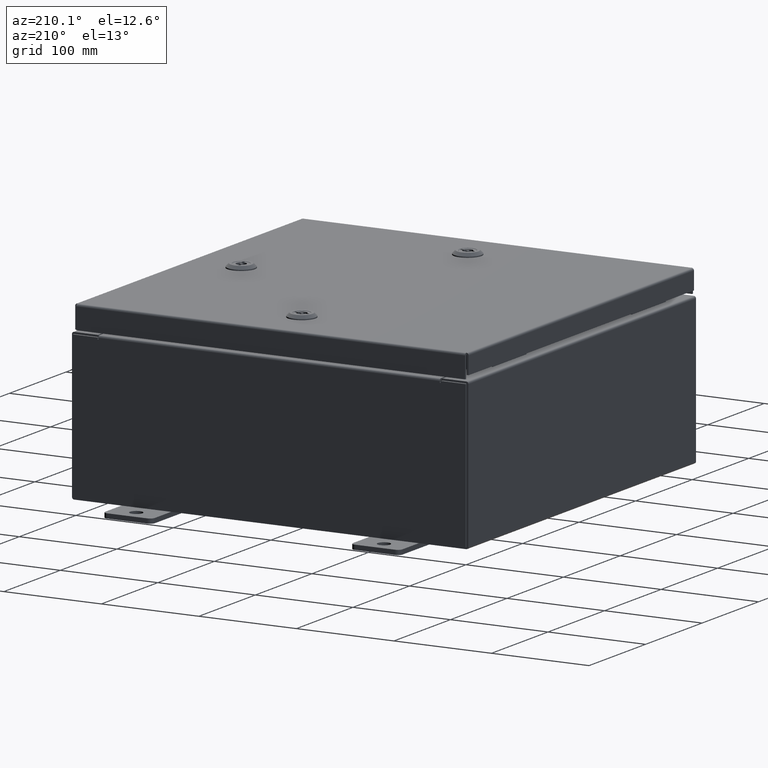
[diagram: clean part render]
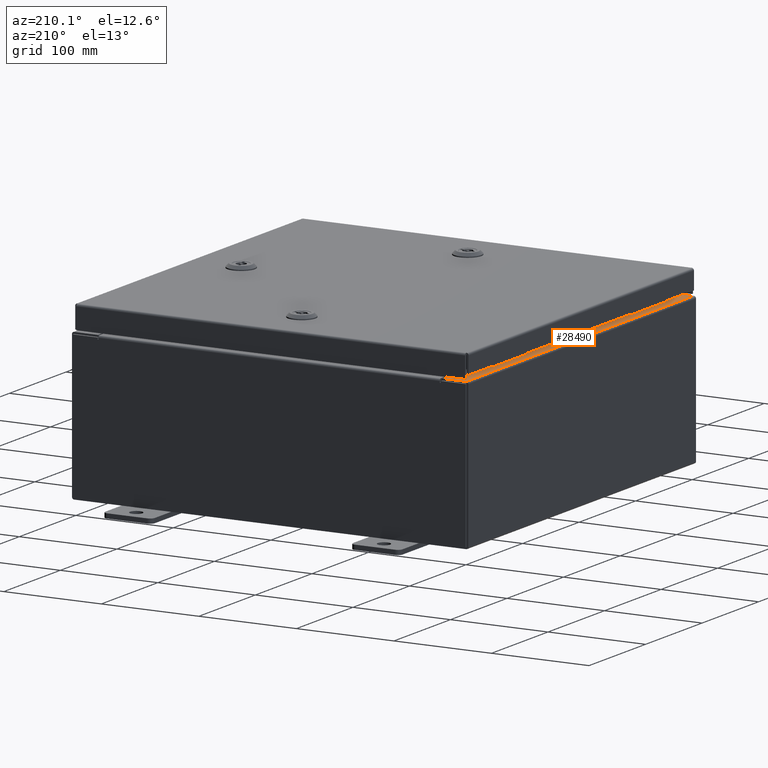
[diagram: same view with one face highlighted and labeled with its STEP entity id]
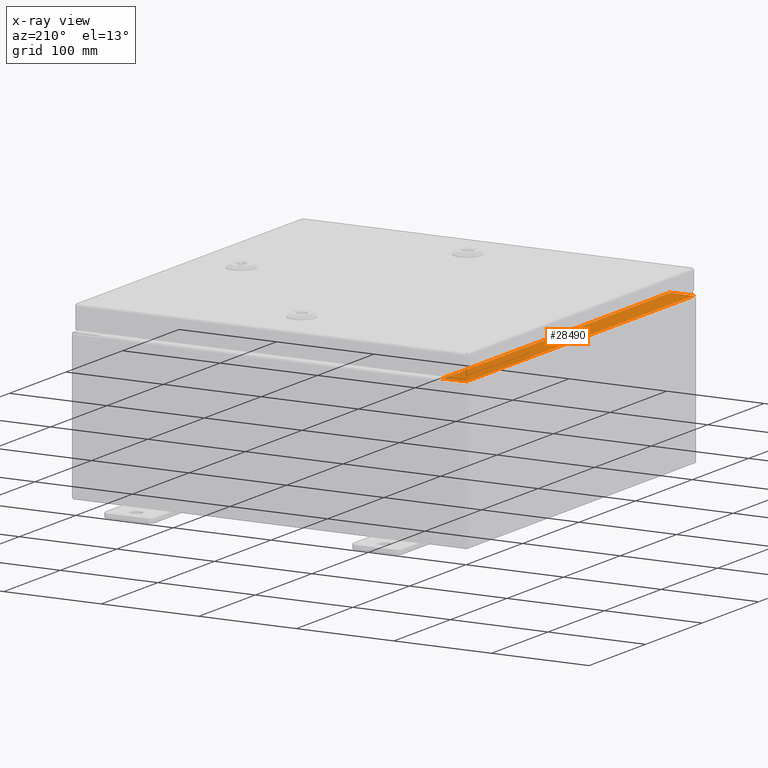
[diagram: x-ray of the same camera — body ghosted, the highlighted face saturated]
A machine part, auxiliary view. The second image highlights one B-rep face of the part: STEP entity #28490.
The next image is the same camera in x-ray: the body ghosted, the highlighted face saturated — about 0% of this face is hidden behind the body in this view.
In plain terms, the highlighted planar face has unit normal (0, 0, -1).
Its self-contained STEP definition (entity closure, byte-faithful):
#933 = CIRCLE ( 'NONE', #20406, 0.01867500000000058700 ) ;
#1455 = CARTESIAN_POINT ( 'NONE',  ( -7.000050000000021200, 6.881099999999996400, 5.925300000000007100 ) ) ;
#3020 = VERTEX_POINT ( 'NONE', #49665 ) ;
#3145 = LINE ( 'NONE', #13915, #14498 ) ;
#3460 = DIRECTION ( 'NONE',  ( 1.000000000000000000, 0.0000000000000000000, 0.0000000000000000000 ) ) ;
#3697 = ORIENTED_EDGE ( 'NONE', *, *, #8250, .F. ) ;
#4121 = VECTOR ( 'NONE', #15396, 39.37007874015748100 ) ;
#4221 = VECTOR ( 'NONE', #20685, 39.37007874015748100 ) ;
#4547 = VERTEX_POINT ( 'NONE', #45377 ) ;
#4646 = CARTESIAN_POINT ( 'NONE',  ( -7.000050000000021200, -6.843750000000000000, 5.925300000000007100 ) ) ;
#5422 = VECTOR ( 'NONE', #55594, 39.37007874015748100 ) ;
#6119 = VERTEX_POINT ( 'NONE', #45215 ) ;
#6475 = LINE ( 'NONE', #35738, #30654 ) ;
#7242 = LINE ( 'NONE', #57524, #55558 ) ;
#8250 = EDGE_CURVE ( 'NONE', #21982, #22270, #43804, .T. ) ;
#13338 = DIRECTION ( 'NONE',  ( 7.840482146637899600E-015, 0.0000000000000000000, -1.000000000000000000 ) ) ;
#13915 = CARTESIAN_POINT ( 'NONE',  ( -6.962700000000021200, 6.843750000000000000, 5.925300000000008000 ) ) ;
#14012 = LINE ( 'NONE', #39504, #51088 ) ;
#14175 = AXIS2_PLACEMENT_3D ( 'NONE', #61302, #32406, #3460 ) ;
#14449 = FACE_OUTER_BOUND ( 'NONE', #54195, .T. ) ;
#14498 = VECTOR ( 'NONE', #43331, 39.37007874015748100 ) ;
#15382 = DIRECTION ( 'NONE',  ( 6.893992640440775600E-017, 1.000000000000000000, 5.405222621642897500E-031 ) ) ;
#15396 = DIRECTION ( 'NONE',  ( -4.822655666717293700E-031, 1.000000000000000000, -3.781194565427903600E-045 ) ) ;
#15591 = AXIS2_PLACEMENT_3D ( 'NONE', #47169, #13338, #27957 ) ;
#15833 = ORIENTED_EDGE ( 'NONE', *, *, #32232, .T. ) ;
#17310 = CARTESIAN_POINT ( 'NONE',  ( -6.949700000000021300, 7.925299999999998200, 5.925300000000007100 ) ) ;
#19584 = VECTOR ( 'NONE', #57861, 39.37007874015748100 ) ;
#19694 = ORIENTED_EDGE ( 'NONE', *, *, #23575, .F. ) ;
#20406 = AXIS2_PLACEMENT_3D ( 'NONE', #51032, #22050, #55806 ) ;
#20685 = DIRECTION ( 'NONE',  ( 1.000000000000000000, 0.0000000000000000000, 7.840482146637899600E-015 ) ) ;
#21638 = CARTESIAN_POINT ( 'NONE',  ( -6.949700000000021300, -7.925300000000000000, 5.925300000000007100 ) ) ;
#21982 = VERTEX_POINT ( 'NONE', #46711 ) ;
#22050 = DIRECTION ( 'NONE',  ( -7.840482146637899600E-015, -0.0000000000000000000, 1.000000000000000000 ) ) ;
#22270 = VERTEX_POINT ( 'NONE', #4646 ) ;
#23081 = PLANE ( 'NONE',  #15591 ) ;
#23095 = EDGE_CURVE ( 'NONE', #42430, #3020, #7242, .T. ) ;
#23575 = EDGE_CURVE ( 'NONE', #54836, #26840, #56293, .T. ) ;
#24922 = CARTESIAN_POINT ( 'NONE',  ( -7.000050000000021200, 6.843749999999996400, 5.925300000000008000 ) ) ;
#25044 = CARTESIAN_POINT ( 'NONE',  ( -7.000050000000021200, 6.843749999999996400, 5.925300000000007100 ) ) ;
#26840 = VERTEX_POINT ( 'NONE', #25044 ) ;
#27102 = EDGE_CURVE ( 'NONE', #22270, #4547, #933, .T. ) ;
#27429 = DIRECTION ( 'NONE',  ( -1.000000000000000000, 0.0000000000000000000, 0.0000000000000000000 ) ) ;
#27957 = DIRECTION ( 'NONE',  ( -1.000000000000000000, 0.0000000000000000000, -7.840482146637899600E-015 ) ) ;
#27997 = VERTEX_POINT ( 'NONE', #28240 ) ;
#28240 = CARTESIAN_POINT ( 'NONE',  ( -6.949700000000021300, 6.881099999999996400, 5.925300000000007100 ) ) ;
#28490 = ADVANCED_FACE ( 'NONE', ( #14449 ), #23081, .F. ) ;
#29484 = ORIENTED_EDGE ( 'NONE', *, *, #54750, .T. ) ;
#29777 = DIRECTION ( 'NONE',  ( 1.000000000000000000, 0.0000000000000000000, 0.0000000000000000000 ) ) ;
#29867 = VECTOR ( 'NONE', #29777, 39.37007874015748100 ) ;
#30654 = VECTOR ( 'NONE', #30872, 39.37007874015748100 ) ;
#30872 = DIRECTION ( 'NONE',  ( -4.822655666717293700E-031, 1.000000000000000000, -3.781194565427903600E-045 ) ) ;
#31126 = LINE ( 'NONE', #50823, #5422 ) ;
#32232 = EDGE_CURVE ( 'NONE', #41725, #55862, #55458, .T. ) ;
#32406 = DIRECTION ( 'NONE',  ( -7.840482146637899600E-015, -0.0000000000000000000, 1.000000000000000000 ) ) ;
#33796 = EDGE_CURVE ( 'NONE', #27997, #54836, #50151, .T. ) ;
#35738 = CARTESIAN_POINT ( 'NONE',  ( -6.949700000000021300, -3.351601008698505000E-030, 5.925300000000007100 ) ) ;
#35932 = ORIENTED_EDGE ( 'NONE', *, *, #27102, .F. ) ;
#36758 = VERTEX_POINT ( 'NONE', #41468 ) ;
#38616 = ORIENTED_EDGE ( 'NONE', *, *, #58923, .F. ) ;
#38840 = VECTOR ( 'NONE', #27429, 39.37007874015748100 ) ;
#39504 = CARTESIAN_POINT ( 'NONE',  ( -7.912300000000021400, 7.925299999999998200, 5.925299999999999100 ) ) ;
#41468 = CARTESIAN_POINT ( 'NONE',  ( -7.912300000000022300, -7.925300000000000000, 5.925299999999999100 ) ) ;
#41725 = VERTEX_POINT ( 'NONE', #21638 ) ;
#42430 = VERTEX_POINT ( 'NONE', #17310 ) ;
#43236 = ORIENTED_EDGE ( 'NONE', *, *, #33796, .F. ) ;
#43331 = DIRECTION ( 'NONE',  ( -0.0000000000000000000, -1.000000000000000000, -0.0000000000000000000 ) ) ;
#43804 = LINE ( 'NONE', #48576, #19584 ) ;
#43847 = EDGE_CURVE ( 'NONE', #36758, #3020, #14012, .T. ) ;
#45215 = CARTESIAN_POINT ( 'NONE',  ( -6.962700000000021200, 6.843749999999996400, 5.925300000000008000 ) ) ;
#45377 = CARTESIAN_POINT ( 'NONE',  ( -7.000050000000021200, -6.881100000000000000, 5.925300000000007100 ) ) ;
#46711 = CARTESIAN_POINT ( 'NONE',  ( -6.962700000000021200, -6.843750000000000000, 5.925300000000008000 ) ) ;
#47169 = CARTESIAN_POINT ( 'NONE',  ( -4.671802251948561000E-014, 0.0000000000000000000, 5.925300000000061300 ) ) ;
#48576 = CARTESIAN_POINT ( 'NONE',  ( -6.962700000000021200, -6.843750000000000000, 5.925300000000008000 ) ) ;
#49239 = CARTESIAN_POINT ( 'NONE',  ( -6.949700000000021300, -3.351601008698505000E-030, 5.925300000000007100 ) ) ;
#49448 = CARTESIAN_POINT ( 'NONE',  ( -6.949700000000021300, -6.881100000000000000, 5.925300000000007100 ) ) ;
#49665 = CARTESIAN_POINT ( 'NONE',  ( -7.912300000000022300, 7.925299999999998200, 5.925299999999999100 ) ) ;
#50151 = LINE ( 'NONE', #51699, #38840 ) ;
#50823 = CARTESIAN_POINT ( 'NONE',  ( -7.000050000000021200, -6.881100000000000000, 5.925300000000008000 ) ) ;
#51032 = CARTESIAN_POINT ( 'NONE',  ( -7.000050000000021200, -6.862424999999999100, 5.925300000000008000 ) ) ;
#51088 = VECTOR ( 'NONE', #15382, 39.37007874015748100 ) ;
#51699 = CARTESIAN_POINT ( 'NONE',  ( -6.949700000000021300, 6.881099999999996400, 5.925300000000008000 ) ) ;
#53698 = ORIENTED_EDGE ( 'NONE', *, *, #23095, .T. ) ;
#54195 = EDGE_LOOP ( 'NONE', ( #43236, #56685, #53698, #56626, #29484, #15833, #54401, #35932, #3697, #38616, #58145, #19694 ) ) ;
#54401 = ORIENTED_EDGE ( 'NONE', *, *, #59290, .F. ) ;
#54750 = EDGE_CURVE ( 'NONE', #36758, #41725, #55565, .T. ) ;
#54836 = VERTEX_POINT ( 'NONE', #1455 ) ;
#55310 = EDGE_CURVE ( 'NONE', #27997, #42430, #6475, .T. ) ;
#55458 = LINE ( 'NONE', #49239, #4121 ) ;
#55502 = LINE ( 'NONE', #24922, #29867 ) ;
#55558 = VECTOR ( 'NONE', #62596, 39.37007874015748100 ) ;
#55565 = LINE ( 'NONE', #59042, #4221 ) ;
#55594 = DIRECTION ( 'NONE',  ( 1.000000000000000000, -2.170286390200002500E-014, 0.0000000000000000000 ) ) ;
#55806 = DIRECTION ( 'NONE',  ( 1.000000000000000000, 0.0000000000000000000, 0.0000000000000000000 ) ) ;
#55819 = EDGE_CURVE ( 'NONE', #26840, #6119, #55502, .T. ) ;
#55862 = VERTEX_POINT ( 'NONE', #49448 ) ;
#56293 = CIRCLE ( 'NONE', #14175, 0.01867500000000058700 ) ;
#56626 = ORIENTED_EDGE ( 'NONE', *, *, #43847, .F. ) ;
#56685 = ORIENTED_EDGE ( 'NONE', *, *, #55310, .T. ) ;
#57524 = CARTESIAN_POINT ( 'NONE',  ( -4.671802251948561000E-014, 7.925299999999998200, 5.925300000000061300 ) ) ;
#57861 = DIRECTION ( 'NONE',  ( -1.000000000000000000, 0.0000000000000000000, 0.0000000000000000000 ) ) ;
#58145 = ORIENTED_EDGE ( 'NONE', *, *, #55819, .F. ) ;
#58923 = EDGE_CURVE ( 'NONE', #6119, #21982, #3145, .T. ) ;
#59042 = CARTESIAN_POINT ( 'NONE',  ( -4.671802251948561000E-014, -7.925300000000000000, 5.925300000000061300 ) ) ;
#59290 = EDGE_CURVE ( 'NONE', #4547, #55862, #31126, .T. ) ;
#61302 = CARTESIAN_POINT ( 'NONE',  ( -7.000050000000021200, 6.862424999999996400, 5.925300000000008000 ) ) ;
#62596 = DIRECTION ( 'NONE',  ( -1.000000000000000000, -7.721746602346999800E-032, -7.840482146637899600E-015 ) ) ;